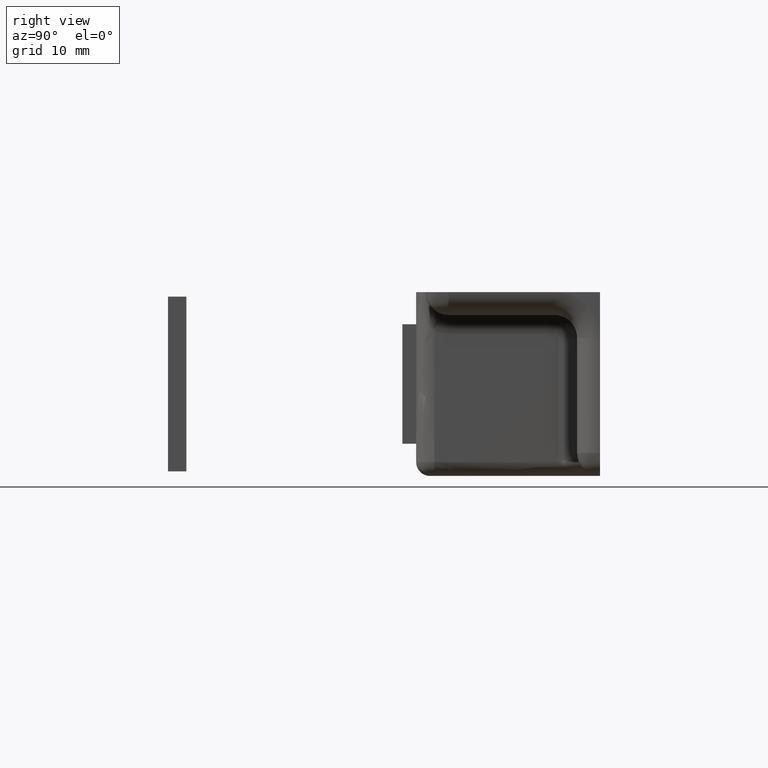
[diagram: clean part render]
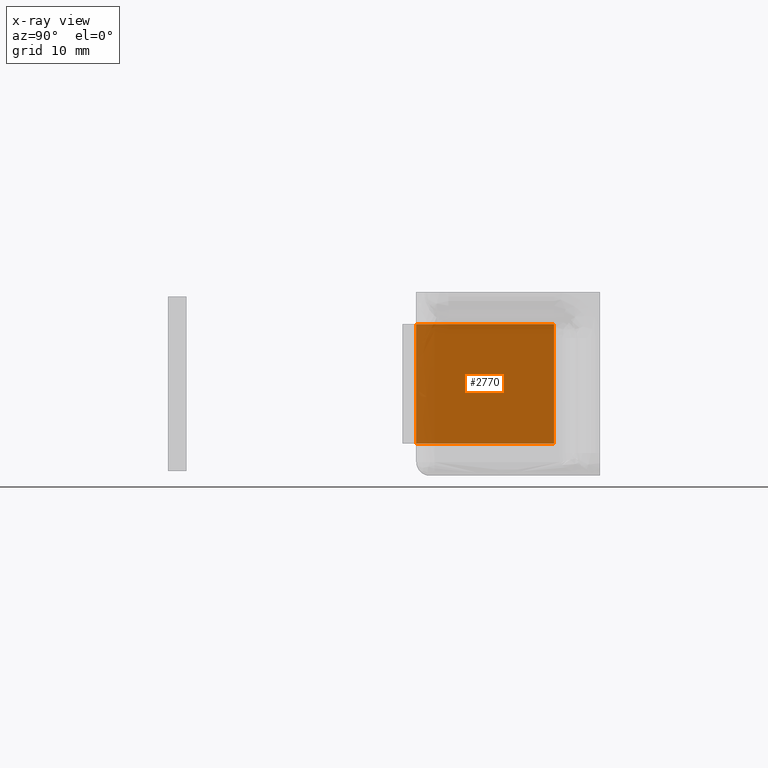
[diagram: x-ray — body ghosted, one internal face saturated and labeled with its STEP entity id]
A machine part, right view, then the same camera in x-ray: the body is ghosted and one INTERNAL B-rep face — a face not visible from any outside direction — is saturated and labeled: STEP entity #2770.
In plain terms, the highlighted face is a freeform B-spline surface patch.
Its self-contained STEP definition (entity closure, byte-faithful):
#2652=CARTESIAN_POINT('',(-11.199999999999999,-5.0,-6.499999999999920));
#2653=VERTEX_POINT('',#2652);
#2654=CARTESIAN_POINT('',(-11.199999999999999,-5.0,6.500000000000090));
#2655=VERTEX_POINT('',#2654);
#2656=CARTESIAN_POINT('',(-11.199999999999999,-5.0,-6.499999999999920));
#2657=CARTESIAN_POINT('',(-11.199999999999999,-5.0,6.500000000000090));
#2658=QUASI_UNIFORM_CURVE('',1,(#2656,#2657),.UNSPECIFIED.,.F.,.U.);
#2659=EDGE_CURVE('',#2653,#2655,#2658,.T.);
#2690=CARTESIAN_POINT('',(-11.199999999999999,-20.0,-6.499999999999920));
#2691=VERTEX_POINT('',#2690);
#2703=CARTESIAN_POINT('',(-11.199999999999999,-5.0,-6.499999999999920));
#2704=CARTESIAN_POINT('',(-11.199999999999999,-20.0,-6.499999999999920));
#2705=QUASI_UNIFORM_CURVE('',1,(#2703,#2704),.UNSPECIFIED.,.F.,.U.);
#2706=EDGE_CURVE('',#2653,#2691,#2705,.T.);
#2738=CARTESIAN_POINT('',(-11.199999999999999,-20.0,6.500000000000090));
#2739=VERTEX_POINT('',#2738);
#2745=CARTESIAN_POINT('',(-11.199999999999999,-5.0,6.500000000000090));
#2746=CARTESIAN_POINT('',(-11.199999999999999,-20.0,6.500000000000090));
#2747=QUASI_UNIFORM_CURVE('',1,(#2745,#2746),.UNSPECIFIED.,.F.,.U.);
#2748=EDGE_CURVE('',#2655,#2739,#2747,.T.);
#2755=CARTESIAN_POINT('',(-11.199999999999999,-20.749249970927089,7.149349974803569));
#2756=CARTESIAN_POINT('',(-11.199999999999999,-20.749249970927089,-7.149350323490572));
#2757=CARTESIAN_POINT('',(-11.199999999999999,-4.250749626741558,7.149349974803569));
#2758=CARTESIAN_POINT('',(-11.199999999999999,-4.250749626741558,-7.149350323490572));
#2759=B_SPLINE_SURFACE_WITH_KNOTS('',1,1,((#2755,#2757),(#2756,#2758)),.UNSPECIFIED.,.F.,.F.,.U.,(2,2),(2,2),(0.0,14.298700298294140),(0.0,16.498500344185530),.UNSPECIFIED.);
#2760=CARTESIAN_POINT('',(-11.199999999999999,-20.0,-6.499999999999920));
#2761=CARTESIAN_POINT('',(-11.199999999999999,-20.0,6.500000000000090));
#2762=QUASI_UNIFORM_CURVE('',1,(#2760,#2761),.UNSPECIFIED.,.F.,.U.);
#2763=EDGE_CURVE('',#2691,#2739,#2762,.T.);
#2764=ORIENTED_EDGE('',*,*,#2763,.F.);
#2765=ORIENTED_EDGE('',*,*,#2706,.F.);
#2766=ORIENTED_EDGE('',*,*,#2659,.T.);
#2767=ORIENTED_EDGE('',*,*,#2748,.T.);
#2768=EDGE_LOOP('',(#2764,#2765,#2766,#2767));
#2769=FACE_OUTER_BOUND('',#2768,.T.);
#2770=ADVANCED_FACE('',(#2769),#2759,.T.);